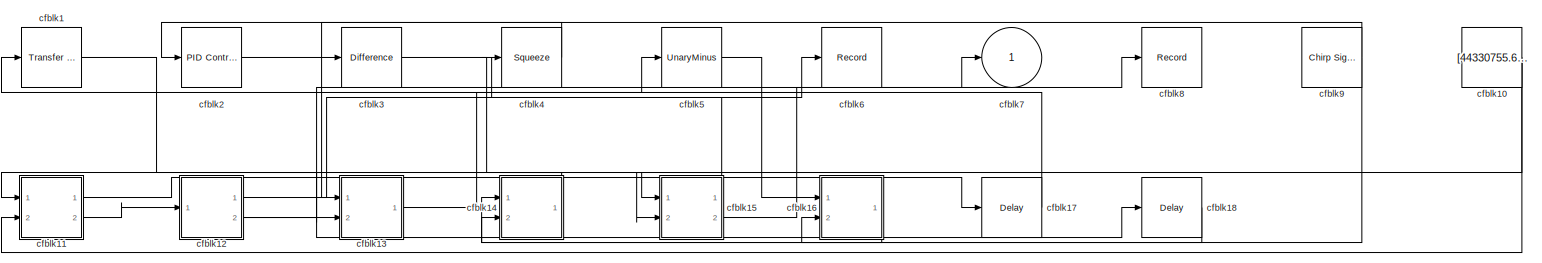
[diagram: root canvas - part 1/1, most of the canvas]
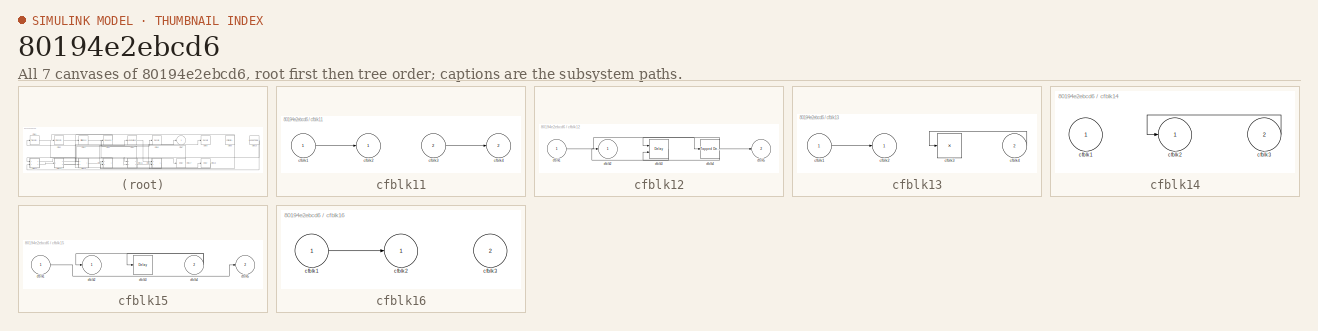
[diagram: thumbnail index - all 7 canvases of the model, root first then tree order]
MODEL slx_80194e2ebcd6
KIND model
CONFIG AbsTol = auto
CONFIG EnableMultiTasking = off
CONFIG FixedStep = auto
CONFIG MaxStep = auto
CONFIG MinStep = auto
CONFIG RelTol = 1e-3
CONFIG SampleTimeConstraint = Unconstrained
CONFIG SolverName = VariableStepAuto
CONFIG StartTime = 0.0
CONFIG StopTime = 10.0
BLOCK [Reference] cfblk1  REF=simulink/Discrete/Transfer Fcn
Real Zero
  Ports = [1, 1]
  SourceBlock = simulink/Discrete/Transfer Fcn\nReal Zero
  SourceProductBaseCode = SL
  SourceType = Transfer Fcn Real Zero
BLOCK [Constant] cfblk10
  SampleTime = 1
  Value = [44330755.628112]
BLOCK [SubSystem] cfblk11
  Ports = [2, 2]
  RequestExecContextInheritance = off
BLOCK [Inport] cfblk11/cfblk1
BLOCK [Outport] cfblk11/cfblk2
BLOCK [Inport] cfblk11/cfblk3
  Port = 2
BLOCK [Outport] cfblk11/cfblk4
  Port = 2
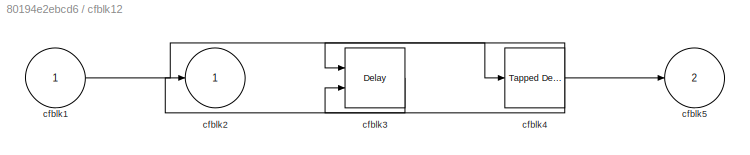
BLOCK [SubSystem] cfblk12
  Ports = [1, 2]
  RequestExecContextInheritance = off
BLOCK [Inport] cfblk12/cfblk1
BLOCK [Outport] cfblk12/cfblk2
BLOCK [Delay] cfblk12/cfblk3
  DelayLengthSource = Input port
  InputPortMap = u0,p1
  Ports = [2, 1]
  SampleTime = 1
BLOCK [Reference] cfblk12/cfblk4  REF=simulink/Discrete/Tapped Delay
  Ports = [1, 1]
  SourceBlock = simulink/Discrete/Tapped Delay
  SourceProductBaseCode = SL
  SourceType = Tapped Delay Line
BLOCK [Outport] cfblk12/cfblk5
  Port = 2
BLOCK [SubSystem] cfblk13
  Ports = [2, 1]
  RequestExecContextInheritance = off
BLOCK [Inport] cfblk13/cfblk1
BLOCK [Outport] cfblk13/cfblk2
BLOCK [Product] cfblk13/cfblk3
  Inputs = *
  Ports = [1, 1]
BLOCK [Inport] cfblk13/cfblk4
  Port = 2
BLOCK [SubSystem] cfblk14
  Ports = [2, 1]
  RequestExecContextInheritance = off
BLOCK [Inport] cfblk14/cfblk1
BLOCK [Outport] cfblk14/cfblk2
BLOCK [Inport] cfblk14/cfblk3
  Port = 2
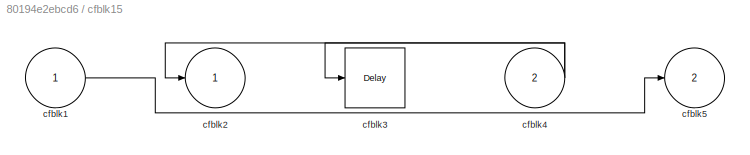
BLOCK [SubSystem] cfblk15
  Ports = [2, 2]
  RequestExecContextInheritance = off
BLOCK [Inport] cfblk15/cfblk1
BLOCK [Outport] cfblk15/cfblk2
BLOCK [Delay] cfblk15/cfblk3
  InputPortMap = u0
  Ports = [1, 1]
  SampleTime = 1
BLOCK [Inport] cfblk15/cfblk4
  Port = 2
BLOCK [Outport] cfblk15/cfblk5
  Port = 2
BLOCK [SubSystem] cfblk16
  Ports = [2, 1]
  RequestExecContextInheritance = off
BLOCK [Inport] cfblk16/cfblk1
BLOCK [Outport] cfblk16/cfblk2
BLOCK [Inport] cfblk16/cfblk3
  Port = 2
BLOCK [Delay] cfblk17
  InputPortMap = u0
  Ports = [1, 1]
  SampleTime = 1
BLOCK [Delay] cfblk18
  InputPortMap = u0
  Ports = [1, 1]
  SampleTime = 1
BLOCK [Reference] cfblk2  REF=slpidlib/PID Controller
  Ports = [1, 1]
  SourceBlock = slpidlib/PID Controller
  SourceProductBaseCode = SL
  SourceType = PID 1dof
BLOCK [Reference] cfblk3  REF=simulink/Discrete/Difference
  Ports = [1, 1]
  SourceBlock = simulink/Discrete/Difference
  SourceProductBaseCode = SL
  SourceType = Difference
BLOCK [Squeeze] cfblk4
BLOCK [UnaryMinus] cfblk5
BLOCK [Record] cfblk6
  FileSettingsInternal = {"entries":[{"content":{"excelSettings":{"content":{},"type":"Streamout.ExcelSettings"}},"type":"Streamout.FileSettingStorage","uuid":"b8d23bc3-ae32-475b-a308-88683dbf683e"}],"packageUris":["http://schema.mathworks.com/mf0/streamout_blocks/R2020a"],"version":"1.0"}
  Ports = [1]
  SignalsInternal = {"entries":[{"content":{"signals":[{"content":{"blockPath":["sampleModel122/cfblk6"],"channel":[],"dimensions":[1],"domain":"sampleModel122/cfblk6","lineColor":"#b746ff","plots":[1],"port":1,"sid":[""],"signalID":4250,"signalName":"cfblk12:1"},"type":"RecordBlkView.Signal","uuid":"a4037f5b-b1f0-4fc7-b2ba-998f5c5b0772"}]},"type":"RecordBlkView.InputSignals","uuid":"ea18e9a3-1baa-4531-96fe-d1d585d86...<+97ch>
  VisualizationBindings = {"sparklinesplugin":{"info":[{"bindingParametersList":[],"subplotID":1}]}}
BLOCK [Outport] cfblk7
BLOCK [Record] cfblk8
  FileSettingsInternal = {"entries":[{"content":{"excelSettings":{"content":{},"type":"Streamout.ExcelSettings"}},"type":"Streamout.FileSettingStorage","uuid":"dab20683-21a2-4191-a36c-ee6f8a9c62a0"}],"packageUris":["http://schema.mathworks.com/mf0/streamout_blocks/R2020a"],"version":"1.0"}
  Ports = [1]
  SignalsInternal = {"entries":[{"content":{"signals":[{"content":{"blockPath":["sampleModel122/cfblk8"],"channel":[],"dimensions":[1],"domain":"sampleModel122/cfblk8","lineColor":"#64d413","plots":[1],"port":1,"sid":[""],"signalID":4254,"signalName":"cfblk15:2"},"type":"RecordBlkView.Signal","uuid":"b063cbc0-41ed-4ac8-98bd-4c6d158a1224"}]},"type":"RecordBlkView.InputSignals","uuid":"22691205-d7f2-4957-832d-46c93b4ec...<+97ch>
  VisualizationBindings = {"sparklinesplugin":{"info":[{"bindingParametersList":[],"subplotID":1}]}}
BLOCK [Reference] cfblk9  REF=simulink/Sources/Chirp Signal
  Ports = [0, 1]
  SourceBlock = simulink/Sources/Chirp Signal
  SourceProductBaseCode = SL
  SourceType = chirp
NET cfblk10:1 -> cfblk11:2, cfblk15:2
LINE cfblk11/cfblk1:1 -> cfblk11/cfblk2:1
LINE cfblk11/cfblk3:1 -> cfblk11/cfblk4:1
LINE cfblk11:1 -> cfblk17:1
LINE cfblk11:2 -> cfblk12:1
LINE cfblk12/cfblk1:1 -> cfblk12/cfblk4:1
LINE cfblk12/cfblk3:1 -> cfblk12/cfblk2:1
NET cfblk12/cfblk4:1 -> cfblk12/cfblk3:1, cfblk12/cfblk3:2, cfblk12/cfblk5:1
LINE cfblk12:1 -> cfblk6:1
NET cfblk12:2 -> cfblk18:1, cfblk7:1
LINE cfblk13/cfblk1:1 -> cfblk13/cfblk2:1
LINE cfblk13/cfblk4:1 -> cfblk13/cfblk3:1
LINE cfblk13:1 -> cfblk5:1
LINE cfblk14/cfblk3:1 -> cfblk14/cfblk2:1
LINE cfblk14:1 -> cfblk11:1
LINE cfblk15/cfblk1:1 -> cfblk15/cfblk5:1
NET cfblk15/cfblk4:1 -> cfblk15/cfblk2:1, cfblk15/cfblk3:1
LINE cfblk15:1 -> cfblk4:1
LINE cfblk15:2 -> cfblk8:1
LINE cfblk16/cfblk1:1 -> cfblk16/cfblk2:1
LINE cfblk16:1 -> cfblk14:2
LINE cfblk17:1 -> cfblk1:1
LINE cfblk18:1 -> cfblk16:2
LINE cfblk1:1 -> cfblk13:2
LINE cfblk2:1 -> cfblk13:1
LINE cfblk3:1 -> cfblk15:1
LINE cfblk4:1 -> cfblk2:1
LINE cfblk5:1 -> cfblk16:1
NET cfblk9:1 -> cfblk14:1, cfblk3:1
note: NET lines group one-source signal fan-out (src -> all destinations, sorted); 1:1 wires keep LINE
